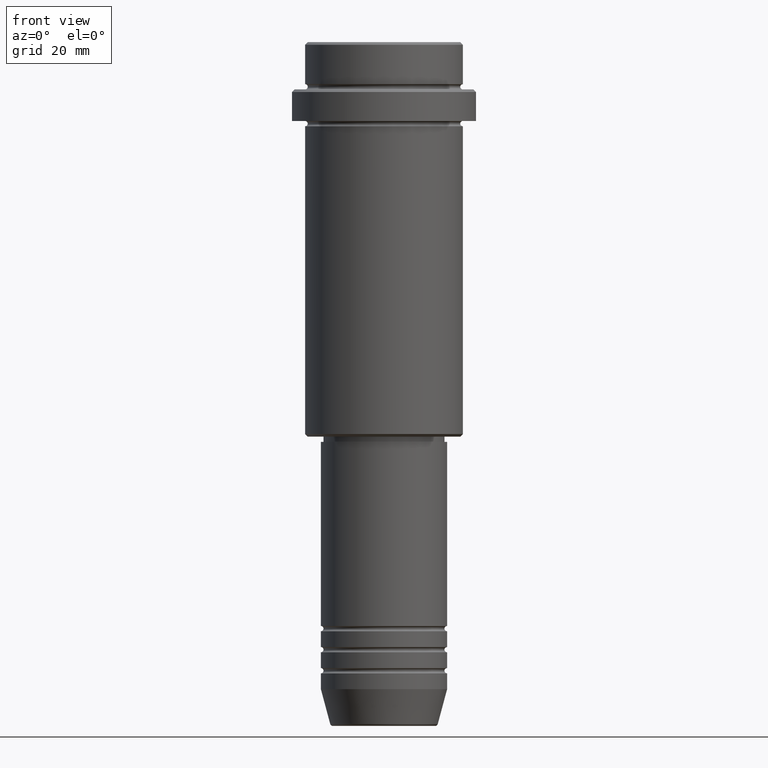
[diagram: clean part render]
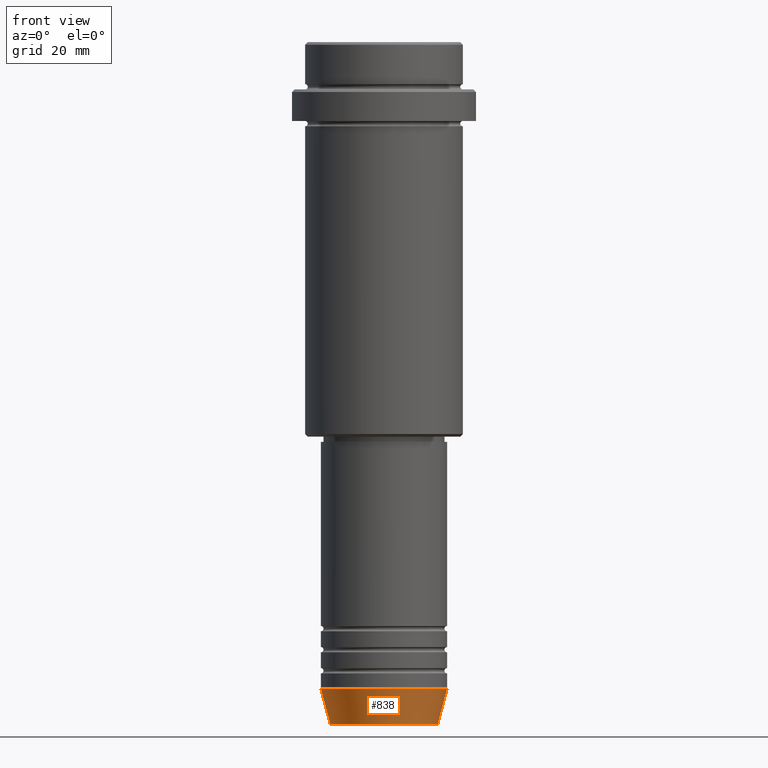
[diagram: same view with one face highlighted and labeled with its STEP entity id]
A machine part, front view. The second image highlights one B-rep face of the part: STEP entity #838.
In plain terms, the highlighted conical surface has half-angle 15 deg.
Its self-contained STEP definition (entity closure, byte-faithful):
#94 = AXIS2_PLACEMENT_3D ( 'NONE', #1054, #1188, #215 ) ;
#195 = CARTESIAN_POINT ( 'NONE',  ( 0.000000000000000000, 0.000000000000000000, -129.6294095225512422 ) ) ;
#206 = AXIS2_PLACEMENT_3D ( 'NONE', #576, #258, #808 ) ;
#215 = DIRECTION ( 'NONE',  ( 1.000000000000000000, 0.000000000000000000, 0.000000000000000000 ) ) ;
#242 = LINE ( 'NONE', #1109, #984 ) ;
#258 = DIRECTION ( 'NONE',  ( -0.000000000000000000, -0.000000000000000000, 1.000000000000000000 ) ) ;
#356 = CARTESIAN_POINT ( 'NONE',  ( -10.22365507213718949, 1.360806402472382744E-15, -129.6294095225512422 ) ) ;
#357 = CARTESIAN_POINT ( 'NONE',  ( 10.22365507213718949, 0.000000000000000000, -129.6294095225512422 ) ) ;
#365 = CIRCLE ( 'NONE', #500, 10.22365507213718949 ) ;
#384 = VERTEX_POINT ( 'NONE', #1394 ) ;
#392 = ORIENTED_EDGE ( 'NONE', *, *, #680, .F. ) ;
#424 = FACE_OUTER_BOUND ( 'NONE', #1259, .T. ) ;
#451 = VERTEX_POINT ( 'NONE', #357 ) ;
#481 = CARTESIAN_POINT ( 'NONE',  ( 12.00000000000000000, 0.000000000000000000, -123.0000000000000000 ) ) ;
#482 = DIRECTION ( 'NONE',  ( -0.000000000000000000, -0.000000000000000000, 1.000000000000000000 ) ) ;
#500 = AXIS2_PLACEMENT_3D ( 'NONE', #195, #482, #921 ) ;
#543 = DIRECTION ( 'NONE',  ( 0.2588190451025213501, 0.000000000000000000, 0.9659258262890680902 ) ) ;
#554 = LINE ( 'NONE', #901, #1179 ) ;
#563 = EDGE_CURVE ( 'NONE', #1284, #384, #554, .T. ) ;
#576 = CARTESIAN_POINT ( 'NONE',  ( 0.000000000000000000, 0.000000000000000000, -123.0000000000000000 ) ) ;
#595 = EDGE_CURVE ( 'NONE', #1284, #451, #365, .T. ) ;
#612 = ORIENTED_EDGE ( 'NONE', *, *, #563, .F. ) ;
#653 = DIRECTION ( 'NONE',  ( -0.2588190451025213501, 3.169619151431772337E-17, 0.9659258262890680902 ) ) ;
#680 = EDGE_CURVE ( 'NONE', #384, #1378, #1302, .T. ) ;
#808 = DIRECTION ( 'NONE',  ( 1.000000000000000000, 0.000000000000000000, 0.000000000000000000 ) ) ;
#838 = ADVANCED_FACE ( 'NONE', ( #424 ), #1317, .T. ) ;
#901 = CARTESIAN_POINT ( 'NONE',  ( -12.00000000000000000, 1.469576158976823947E-15, -123.0000000000000000 ) ) ;
#921 = DIRECTION ( 'NONE',  ( 1.000000000000000000, 0.000000000000000000, 0.000000000000000000 ) ) ;
#940 = EDGE_CURVE ( 'NONE', #451, #1378, #242, .T. ) ;
#984 = VECTOR ( 'NONE', #543, 1000.000000000000000 ) ;
#1026 = ORIENTED_EDGE ( 'NONE', *, *, #595, .T. ) ;
#1054 = CARTESIAN_POINT ( 'NONE',  ( 0.000000000000000000, 0.000000000000000000, -123.0000000000000000 ) ) ;
#1109 = CARTESIAN_POINT ( 'NONE',  ( 12.00000000000000000, 0.000000000000000000, -123.0000000000000000 ) ) ;
#1179 = VECTOR ( 'NONE', #653, 1000.000000000000000 ) ;
#1188 = DIRECTION ( 'NONE',  ( -0.000000000000000000, -0.000000000000000000, 1.000000000000000000 ) ) ;
#1259 = EDGE_LOOP ( 'NONE', ( #612, #1026, #1307, #392 ) ) ;
#1284 = VERTEX_POINT ( 'NONE', #356 ) ;
#1302 = CIRCLE ( 'NONE', #206, 12.00000000000000000 ) ;
#1307 = ORIENTED_EDGE ( 'NONE', *, *, #940, .T. ) ;
#1317 = CONICAL_SURFACE ( 'NONE', #94, 12.00000000000000000, 0.2617993877991500740 ) ;
#1378 = VERTEX_POINT ( 'NONE', #481 ) ;
#1394 = CARTESIAN_POINT ( 'NONE',  ( -12.00000000000000000, 1.469576158976823947E-15, -123.0000000000000000 ) ) ;